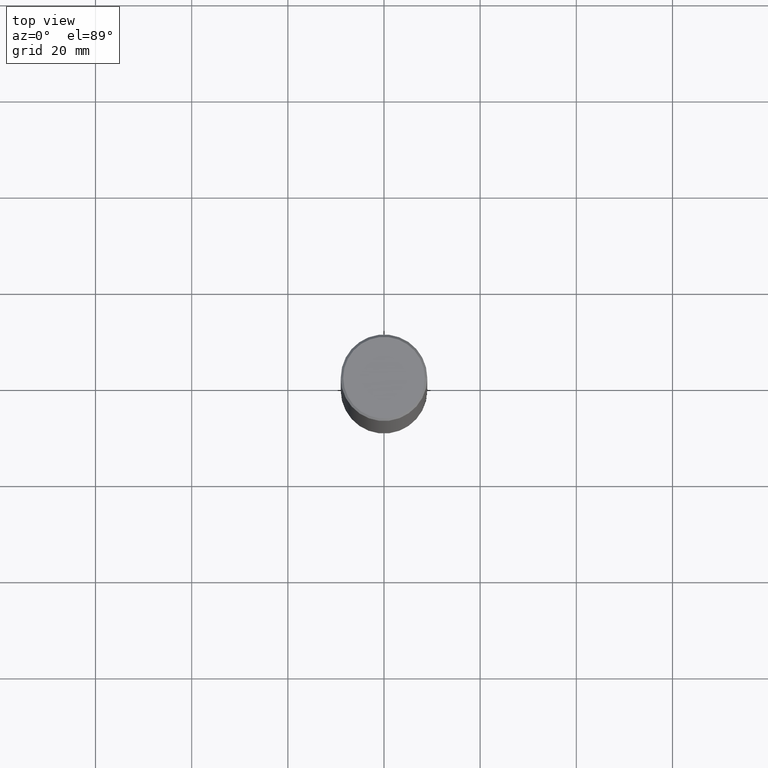
[diagram: clean part render]
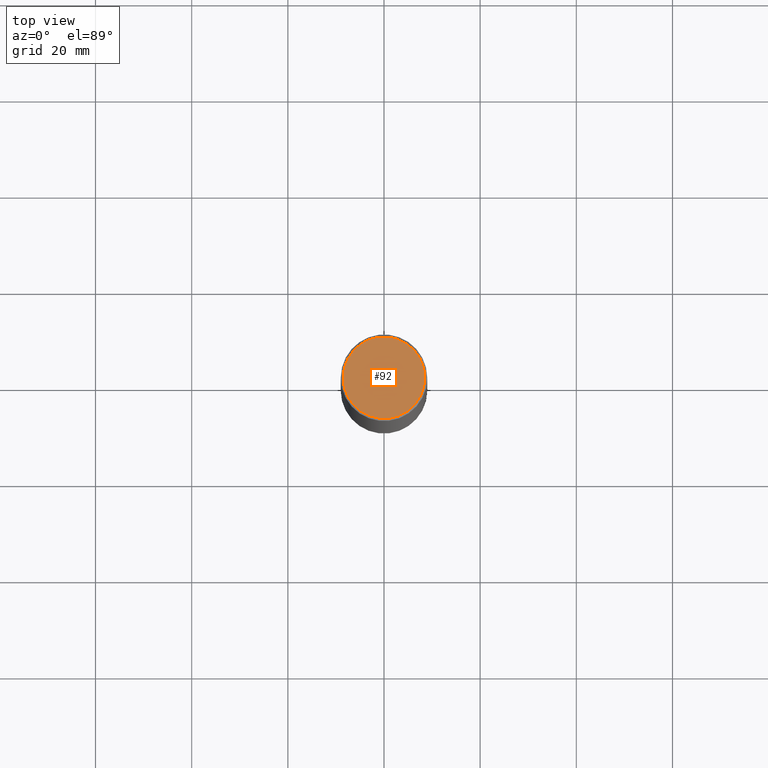
[diagram: same view with one face highlighted and labeled with its STEP entity id]
A machine part, top view. The second image highlights one B-rep face of the part: STEP entity #92.
In plain terms, the highlighted planar face has unit normal (0, -0, -1).
Its self-contained STEP definition (entity closure, byte-faithful):
#29 = DIRECTION ( 'NONE',  ( -2.445468806185136597E-29, 3.491481338843145583E-15, 1.000000000000000000 ) ) ;
#37 = DIRECTION ( 'NONE',  ( -1.000000000000000000, 6.982962677686265922E-15, -4.876176775795935793E-29 ) ) ;
#55 = AXIS2_PLACEMENT_3D ( 'NONE', #230, #324, #37 ) ;
#60 = CIRCLE ( 'NONE', #255, 0.3343499999999996475 ) ;
#92 = ADVANCED_FACE ( 'NONE', ( #140 ), #202, .F. ) ;
#94 = DIRECTION ( 'NONE',  ( 1.000000000000000000, -6.982962677686266711E-15, 4.876061227832602160E-29 ) ) ;
#128 = EDGE_CURVE ( 'NONE', #148, #159, #60, .T. ) ;
#140 = FACE_OUTER_BOUND ( 'NONE', #142, .T. ) ;
#142 = EDGE_LOOP ( 'NONE', ( #319, #265 ) ) ;
#147 = CARTESIAN_POINT ( 'NONE',  ( -1.043851414335219820E-46, 1.490343170380447200E-32, 4.268512490100411279E-18 ) ) ;
#148 = VERTEX_POINT ( 'NONE', #171 ) ;
#159 = VERTEX_POINT ( 'NONE', #258 ) ;
#171 = CARTESIAN_POINT ( 'NONE',  ( -0.3343499999999996475, 2.369668384672832169E-15, 4.268512490083961526E-18 ) ) ;
#202 = PLANE ( 'NONE',  #55 ) ;
#226 = DIRECTION ( 'NONE',  ( -2.445468806185136597E-29, 3.491481338843145583E-15, 1.000000000000000000 ) ) ;
#230 = CARTESIAN_POINT ( 'NONE',  ( 2.334753571284400520E-15, 0.3343499999999996475, -1.165242529397154385E-15 ) ) ;
#246 = EDGE_CURVE ( 'NONE', #159, #148, #269, .T. ) ;
#255 = AXIS2_PLACEMENT_3D ( 'NONE', #321, #29, #94 ) ;
#258 = CARTESIAN_POINT ( 'NONE',  ( 0.3343499999999996475, -2.397327298921056737E-15, 4.268512490116958099E-18 ) ) ;
#265 = ORIENTED_EDGE ( 'NONE', *, *, #246, .T. ) ;
#269 = CIRCLE ( 'NONE', #298, 0.3343499999999996475 ) ;
#298 = AXIS2_PLACEMENT_3D ( 'NONE', #147, #226, #316 ) ;
#316 = DIRECTION ( 'NONE',  ( 1.000000000000000000, -6.982962677686266711E-15, 4.876061227832602160E-29 ) ) ;
#319 = ORIENTED_EDGE ( 'NONE', *, *, #128, .T. ) ;
#321 = CARTESIAN_POINT ( 'NONE',  ( -1.043851414335219820E-46, 1.490343170380447200E-32, 4.268512490100411279E-18 ) ) ;
#324 = DIRECTION ( 'NONE',  ( 2.438088387897960049E-29, -3.491481338843145188E-15, -1.000000000000000000 ) ) ;